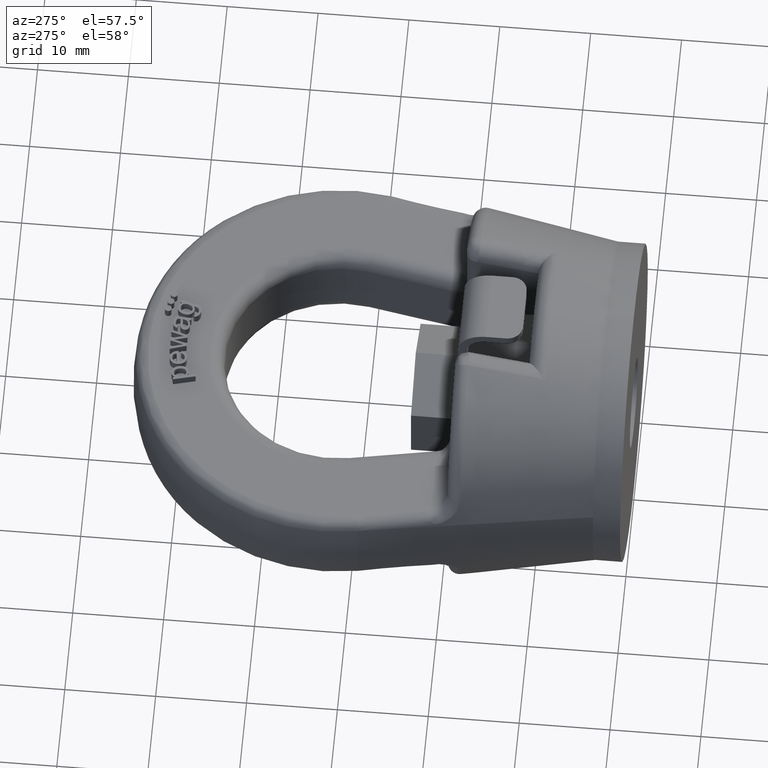
[diagram: clean part render]
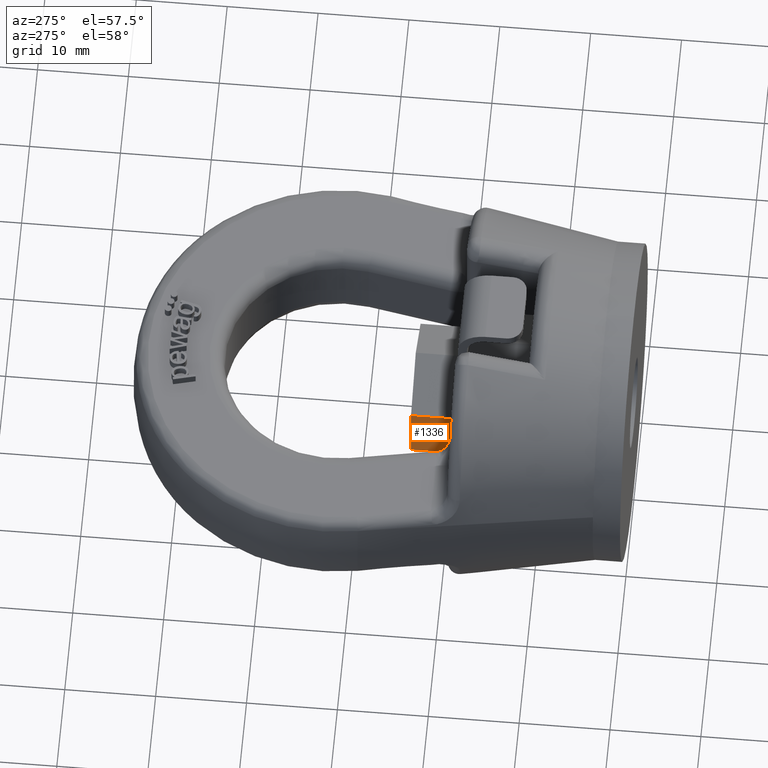
[diagram: same view with one face highlighted and labeled with its STEP entity id]
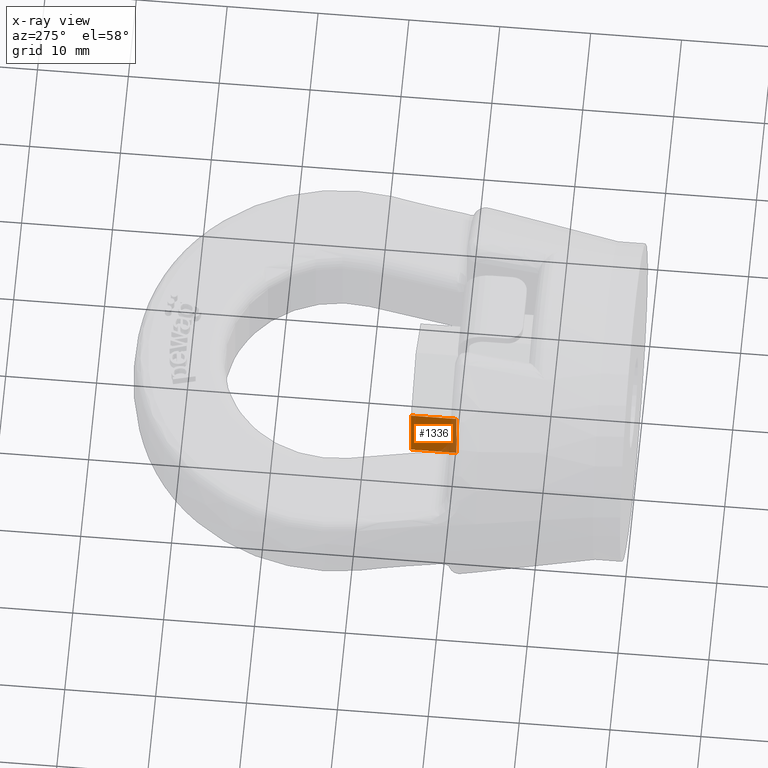
[diagram: x-ray of the same camera — body ghosted, the highlighted face saturated]
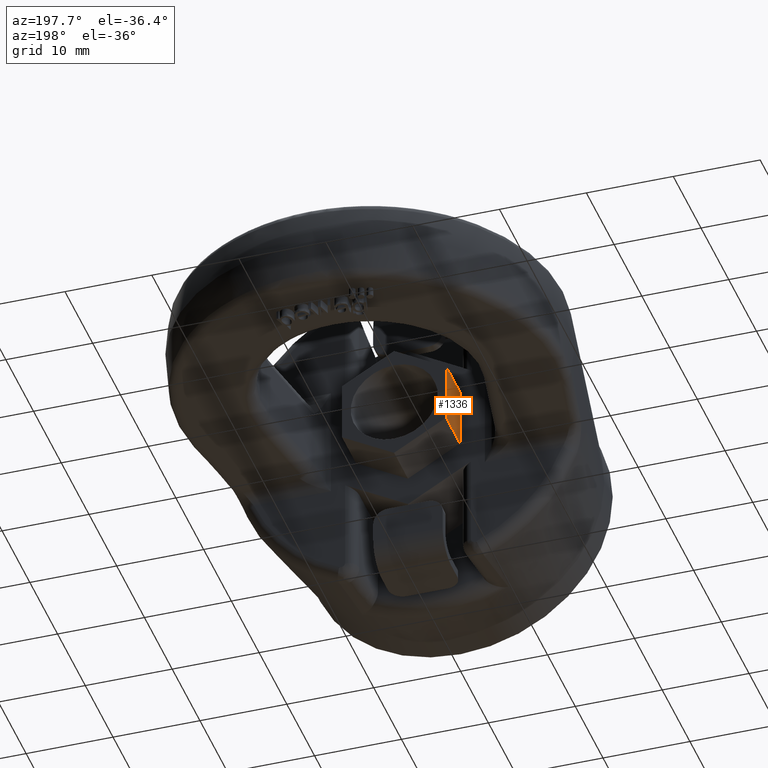
[diagram: same view with one face highlighted and labeled with its STEP entity id]
A machine part, auxiliary view. The second image highlights one B-rep face of the part: STEP entity #1336.
The next image is the same camera in x-ray: the body ghosted, the highlighted face saturated — about 17% of this face is hidden behind the body in this view.
A second angle (auxiliary view) of the same face is appended — the face is thin or edge-on in the first view.
In plain terms, the highlighted planar face has unit normal (-1, 0, 0).
Its self-contained STEP definition (entity closure, byte-faithful):
#1113=FACE_OUTER_BOUND('',#1853,.T.);
#1336=ADVANCED_FACE('',(#1113),#1572,.T.);
#1572=PLANE('',#5143);
#1853=EDGE_LOOP('',(#2845,#2846,#2847,#2848));
#2160=LINE('',#6861,#2430);
#2170=LINE('',#6899,#2440);
#2171=LINE('',#6902,#2441);
#2172=LINE('',#6903,#2442);
#2430=VECTOR('',#5497,1.);
#2440=VECTOR('',#5527,1.);
#2441=VECTOR('',#5528,1.);
#2442=VECTOR('',#5529,1.);
#2845=ORIENTED_EDGE('',*,*,#4392,.F.);
#2846=ORIENTED_EDGE('',*,*,#4393,.F.);
#2847=ORIENTED_EDGE('',*,*,#4377,.T.);
#2848=ORIENTED_EDGE('',*,*,#4394,.T.);
#3989=VERTEX_POINT('',#6860);
#3990=VERTEX_POINT('',#6862);
#4001=VERTEX_POINT('',#6900);
#4002=VERTEX_POINT('',#6901);
#4377=EDGE_CURVE('',#3990,#3989,#2160,.T.);
#4392=EDGE_CURVE('',#4001,#4002,#2170,.T.);
#4393=EDGE_CURVE('',#3990,#4001,#2171,.T.);
#4394=EDGE_CURVE('',#3989,#4002,#2172,.T.);
#5143=AXIS2_PLACEMENT_3D('',#6904,#5530,#5531);
#5497=DIRECTION('',(0.,0.,1.));
#5527=DIRECTION('',(0.,0.,1.));
#5528=DIRECTION('',(0.,1.,0.));
#5529=DIRECTION('',(0.,1.,0.));
#5530=DIRECTION('',(-1.,0.,0.));
#5531=DIRECTION('',(0.,0.,1.));
#6860=CARTESIAN_POINT('',(-6.,19.,3.46410161513775));
#6861=CARTESIAN_POINT('',(-6.,19.,24.75));
#6862=CARTESIAN_POINT('',(-5.99999999999999,19.,-3.46410161513776));
#6899=CARTESIAN_POINT('',(-6.,24.,-3.46410161513775));
#6900=CARTESIAN_POINT('',(-5.99999999999999,24.,-3.46410161513776));
#6901=CARTESIAN_POINT('',(-6.,24.,3.46410161513775));
#6902=CARTESIAN_POINT('',(-5.99999999999999,0.899999999999998,-3.46410161513776));
#6903=CARTESIAN_POINT('',(-6.,0.899999999999998,3.46410161513775));
#6904=CARTESIAN_POINT('',(-6.,0.899999999999998,-3.46410161513775));